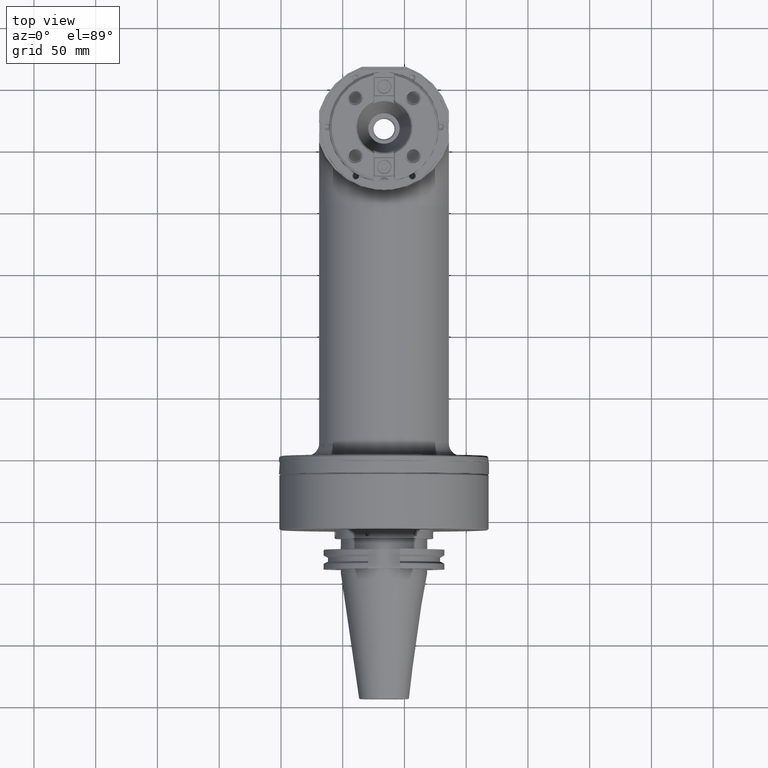
[diagram: clean part render]
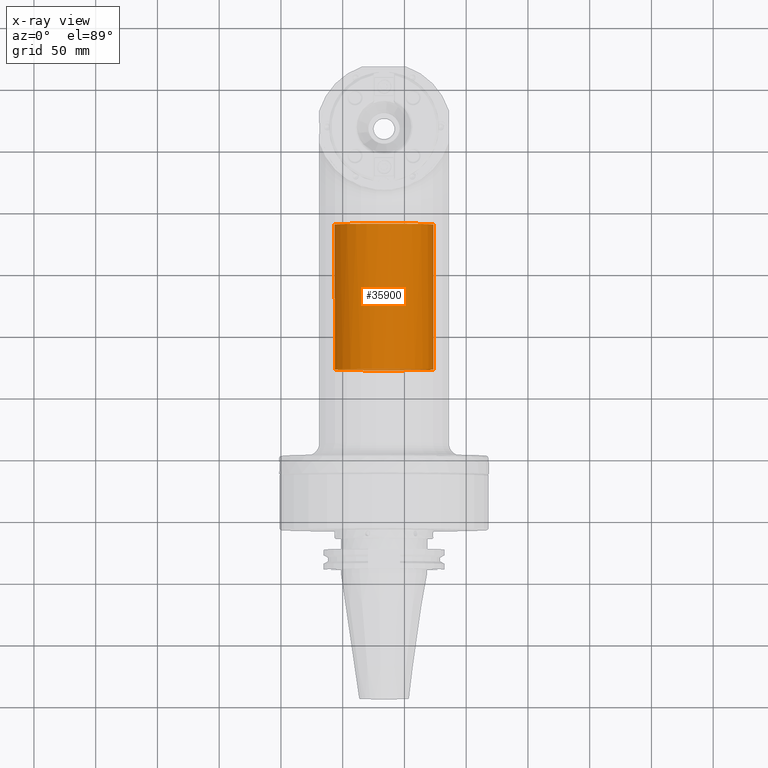
[diagram: x-ray — body ghosted, one internal face saturated and labeled with its STEP entity id]
A machine part, top view, then the same camera in x-ray: the body is ghosted and one INTERNAL B-rep face — a face not visible from any outside direction — is saturated and labeled: STEP entity #35900.
In plain terms, the highlighted cylindrical surface (bore or boss wall) has radius 40 mm, axis along (0, -1, 0).
Its self-contained STEP definition (entity closure, byte-faithful):
#1702=LINE('',#55393,#4992);
#4992=VECTOR('',#42965,1.5748031496063);
#7827=CYLINDRICAL_SURFACE('',#38290,1.5748031496063);
#8694=FACE_OUTER_BOUND('',#10883,.T.);
#10883=EDGE_LOOP('',(#24795,#24796,#24797,#24798,#24799,#24800));
#13171=CIRCLE('',#38287,1.5748031496063);
#13173=CIRCLE('',#38289,1.5748031496063);
#13174=CIRCLE('',#38291,1.5748031496063);
#13175=CIRCLE('',#38292,1.5748031496063);
#15131=VERTEX_POINT('',#55386);
#15132=VERTEX_POINT('',#55387);
#15133=VERTEX_POINT('',#55392);
#15134=VERTEX_POINT('',#55394);
#18874=EDGE_CURVE('',#15131,#15132,#13171,.T.);
#18876=EDGE_CURVE('',#15132,#15131,#13173,.T.);
#18877=EDGE_CURVE('',#15131,#15133,#1702,.T.);
#18878=EDGE_CURVE('',#15134,#15133,#13174,.T.);
#18879=EDGE_CURVE('',#15133,#15134,#13175,.T.);
#24795=ORIENTED_EDGE('',*,*,#18874,.F.);
#24796=ORIENTED_EDGE('',*,*,#18877,.T.);
#24797=ORIENTED_EDGE('',*,*,#18878,.F.);
#24798=ORIENTED_EDGE('',*,*,#18879,.F.);
#24799=ORIENTED_EDGE('',*,*,#18877,.F.);
#24800=ORIENTED_EDGE('',*,*,#18876,.F.);
#35900=ADVANCED_FACE('',(#8694),#7827,.F.);
#38287=AXIS2_PLACEMENT_3D('',#55388,#42957,#42958);
#38289=AXIS2_PLACEMENT_3D('',#55390,#42961,#42962);
#38290=AXIS2_PLACEMENT_3D('',#55391,#42963,#42964);
#38291=AXIS2_PLACEMENT_3D('',#55395,#42966,#42967);
#38292=AXIS2_PLACEMENT_3D('',#55396,#42968,#42969);
#42957=DIRECTION('center_axis',(0.,-1.,0.));
#42958=DIRECTION('ref_axis',(-1.,0.,0.));
#42961=DIRECTION('center_axis',(0.,-1.,0.));
#42962=DIRECTION('ref_axis',(-1.,0.,0.));
#42963=DIRECTION('center_axis',(0.,-1.,0.));
#42964=DIRECTION('ref_axis',(-1.,0.,0.));
#42965=DIRECTION('',(0.,-1.,0.));
#42966=DIRECTION('center_axis',(0.,1.,0.));
#42967=DIRECTION('ref_axis',(1.,0.,0.));
#42968=DIRECTION('center_axis',(0.,1.,0.));
#42969=DIRECTION('ref_axis',(1.,0.,0.));
#55386=CARTESIAN_POINT('',(1.5748031496063,9.27165354330709,1.92857763645252E-16));
#55387=CARTESIAN_POINT('',(1.57477249479022,9.27165354330709,-0.00982596876184418));
#55388=CARTESIAN_POINT('Origin',(0.,9.27165354330709,0.));
#55390=CARTESIAN_POINT('Origin',(0.,9.27165354330709,0.));
#55391=CARTESIAN_POINT('Origin',(0.,12.9389763779528,0.));
#55392=CARTESIAN_POINT('',(1.5748031496063,4.64565312608268,1.92857763645253E-16));
#55393=CARTESIAN_POINT('',(1.5748031496063,12.9389763779528,1.92857763645253E-16));
#55394=CARTESIAN_POINT('',(6.46071094291783E-15,4.64565312608191,1.57480314960553));
#55395=CARTESIAN_POINT('Origin',(5.06493343059843E-16,4.64565312608268,
2.48270345664213E-15));
#55396=CARTESIAN_POINT('Origin',(5.06493343059843E-16,4.64565312608268,
2.48270345664213E-15));